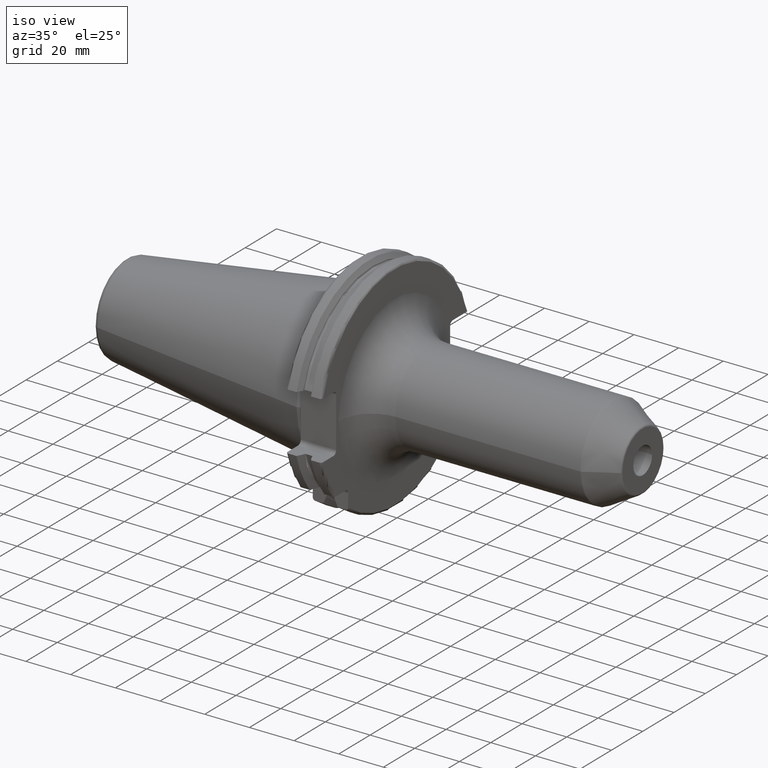
[diagram: clean part render]
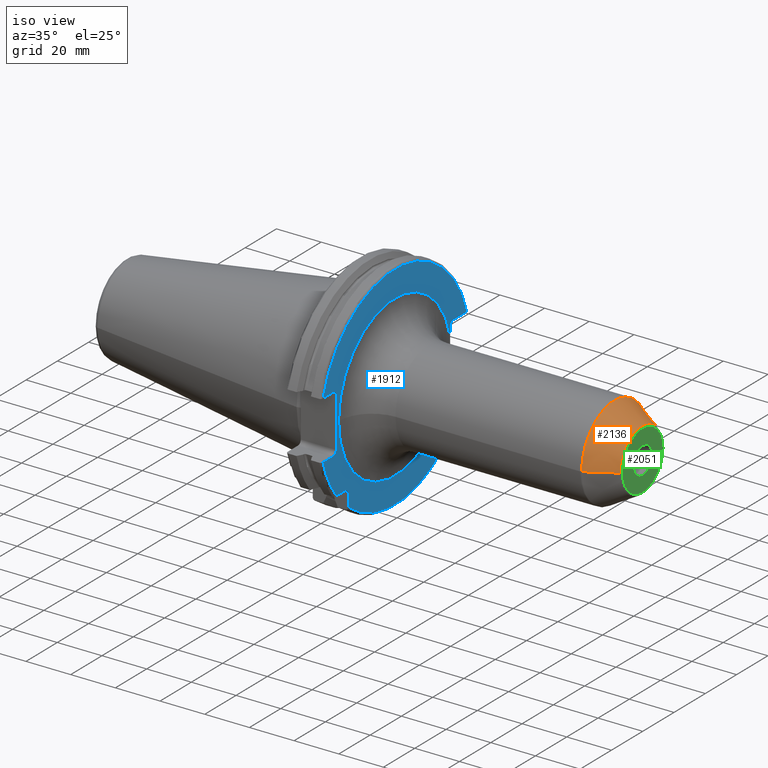
[diagram: same view with three faces highlighted in distinct colors, each labeled with its STEP entity id]
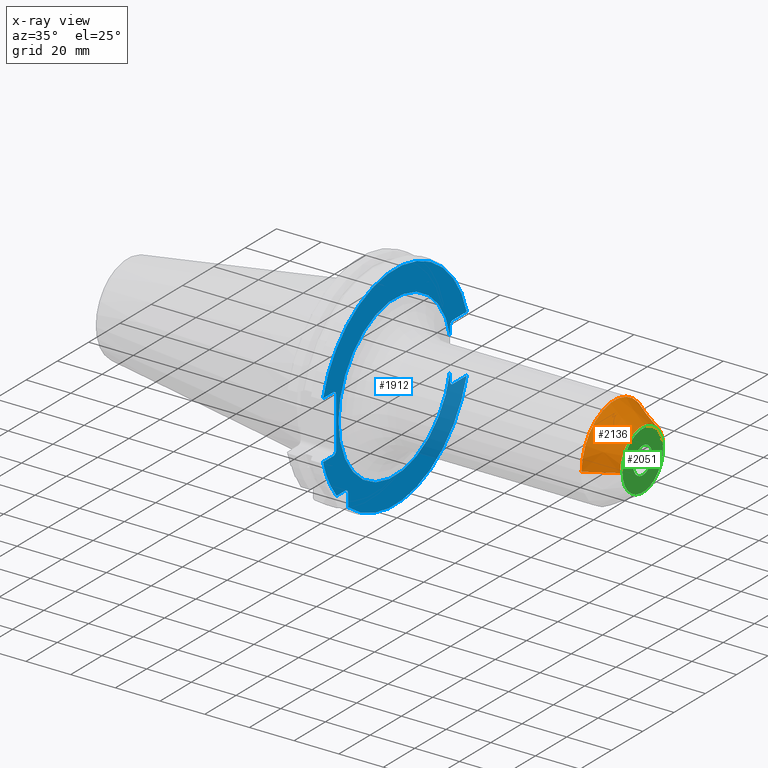
[diagram: x-ray of the same camera — body ghosted, the three highlighted faces saturated]
A machine part, iso view with three faces highlighted in distinct colors.
The next image is the same camera in x-ray (body ghosted, the three faces saturated) — at least one of them is partly hidden behind the body in this view.
Their STEP definitions:

[orange] entity #2136 — the highlighted conical surface has half-angle 30 deg.
#350=DIRECTION('',(-8.660254037844E-1,-5.E-1,1.561626222061E-13));
#351=VECTOR('',#350,1.416580753731E1);
#352=CARTESIAN_POINT('',(1.295E2,-1.378312163513E1,2.107165525775E-12));
#353=LINE('',#352,#351);
#359=DIRECTION('',(-8.660254037844E-1,5.E-1,-1.559170936960E-13));
#360=VECTOR('',#359,1.416580753731E1);
#361=CARTESIAN_POINT('',(1.295E2,1.378312163513E1,-2.110651033828E-12));
#362=LINE('',#361,#360);
#419=CARTESIAN_POINT('',(1.172320508076E2,0.E0,0.E0));
#420=DIRECTION('',(-1.E0,0.E0,0.E0));
#421=DIRECTION('',(0.E0,-1.E0,0.E0));
#422=AXIS2_PLACEMENT_3D('',#419,#420,#421);
#424=CARTESIAN_POINT('',(1.295E2,0.E0,0.E0));
#425=DIRECTION('',(-1.E0,0.E0,0.E0));
#426=DIRECTION('',(0.E0,-1.E0,0.E0));
#427=AXIS2_PLACEMENT_3D('',#424,#425,#426);
#1663=CARTESIAN_POINT('',(1.172320508076E2,2.086602540378E1,0.E0));
#1664=CARTESIAN_POINT('',(1.172320508076E2,-2.086602540378E1,0.E0));
#1665=VERTEX_POINT('',#1663);
#1666=VERTEX_POINT('',#1664);
#1667=CARTESIAN_POINT('',(1.295E2,1.378312163513E1,0.E0));
#1668=CARTESIAN_POINT('',(1.295E2,-1.378312163513E1,0.E0));
#1669=VERTEX_POINT('',#1667);
#1670=VERTEX_POINT('',#1668);
#2124=CARTESIAN_POINT('',(1.233660254038E2,0.E0,0.E0));
#2125=DIRECTION('',(-1.E0,0.E0,0.E0));
#2126=DIRECTION('',(0.E0,1.E0,0.E0));
#2127=AXIS2_PLACEMENT_3D('',#2124,#2125,#2126);
#2128=CONICAL_SURFACE('',#2127,1.732457351946E1,3.E1);
#2129=ORIENTED_EDGE('',*,*,#2118,.T.);
#2130=ORIENTED_EDGE('',*,*,#2077,.F.);
#2132=ORIENTED_EDGE('',*,*,#2131,.F.);
#2133=ORIENTED_EDGE('',*,*,#2074,.T.);
#2134=EDGE_LOOP('',(#2129,#2130,#2132,#2133));
#2135=FACE_OUTER_BOUND('',#2134,.F.);
#2136=ADVANCED_FACE('',(#2135),#2128,.T.);
#423=CIRCLE('',#422,2.086602540378E1);
#428=CIRCLE('',#427,1.378312163513E1);
#2074=EDGE_CURVE('',#1670,#1666,#353,.T.);
#2077=EDGE_CURVE('',#1669,#1665,#362,.T.);
#2118=EDGE_CURVE('',#1666,#1665,#423,.T.);
#2131=EDGE_CURVE('',#1670,#1669,#428,.T.);

[blue] entity #1912 — the highlighted planar face has unit normal (1, 0, 0).
#130=CARTESIAN_POINT('',(1.905E1,0.E0,0.E0));
#131=DIRECTION('',(1.E0,0.E0,0.E0));
#132=DIRECTION('',(0.E0,-1.E0,0.E0));
#133=AXIS2_PLACEMENT_3D('',#130,#131,#132);
#135=DIRECTION('',(0.E0,-2.032129438473E-6,-9.999999999979E-1));
#136=VECTOR('',#135,4.085507980678E0);
#137=CARTESIAN_POINT('',(1.905E1,3.530000830228E1,-7.064492019331E0));
#138=LINE('',#137,#136);
#139=DIRECTION('',(0.E0,-1.E0,0.E0));
#140=VECTOR('',#139,8.911493733886E0);
#141=CARTESIAN_POINT('',(1.905E1,4.596149373389E1,-1.29E1));
#142=LINE('',#141,#140);
#143=DIRECTION('',(0.E0,0.E0,1.E0));
#144=VECTOR('',#143,5.653810627237E0);
#145=CARTESIAN_POINT('',(1.905E1,-2.985E1,-3.725381062724E1));
#146=LINE('',#145,#144);
#147=DIRECTION('',(0.E0,-1.E0,0.E0));
#148=VECTOR('',#147,5.653810627237E0);
#149=CARTESIAN_POINT('',(1.905E1,-3.16E1,-2.985E1));
#150=LINE('',#149,#148);
#151=DIRECTION('',(0.E0,1.E0,0.E0));
#152=VECTOR('',#151,6.711493733886E0);
#153=CARTESIAN_POINT('',(1.905E1,-4.596149373389E1,-1.29E1));
#154=LINE('',#153,#152);
#155=DIRECTION('',(0.E0,0.E0,1.E0));
#156=VECTOR('',#155,2.23E1);
#157=CARTESIAN_POINT('',(1.905E1,-3.75E1,-1.115E1));
#158=LINE('',#157,#156);
#159=DIRECTION('',(0.E0,1.E0,0.E0));
#160=VECTOR('',#159,6.711493733886E0);
#161=CARTESIAN_POINT('',(1.905E1,-4.596149373389E1,1.29E1));
#162=LINE('',#161,#160);
#163=DIRECTION('',(0.E0,-1.E0,0.E0));
#164=VECTOR('',#163,8.911493733886E0);
#165=CARTESIAN_POINT('',(1.905E1,4.596149373389E1,1.29E1));
#166=LINE('',#165,#164);
#167=DIRECTION('',(0.E0,2.233969081153E-6,-9.999999999975E-1));
#168=VECTOR('',#167,4.085480621795E0);
#169=CARTESIAN_POINT('',(1.905E1,3.53E1,1.115E1));
#170=LINE('',#169,#168);
#171=CARTESIAN_POINT('',(1.905E1,0.E0,0.E0));
#172=DIRECTION('',(1.E0,0.E0,0.E0));
#173=DIRECTION('',(0.E0,9.805577363582E-1,1.962307969408E-1));
#174=AXIS2_PLACEMENT_3D('',#171,#172,#173);
#434=CARTESIAN_POINT('',(1.905E1,3.705E1,-1.115E1));
#435=DIRECTION('',(-1.E0,0.E0,0.E0));
#436=DIRECTION('',(0.E0,0.E0,-1.E0));
#437=AXIS2_PLACEMENT_3D('',#434,#435,#436);
#503=CARTESIAN_POINT('',(1.905E1,-3.925E1,1.115E1));
#504=DIRECTION('',(-1.E0,0.E0,0.E0));
#505=DIRECTION('',(0.E0,0.E0,1.E0));
#506=AXIS2_PLACEMENT_3D('',#503,#504,#505);
#521=CARTESIAN_POINT('',(1.905E1,-3.925E1,-1.115E1));
#522=DIRECTION('',(-1.E0,0.E0,0.E0));
#523=DIRECTION('',(0.E0,1.E0,0.E0));
#524=AXIS2_PLACEMENT_3D('',#521,#522,#523);
#544=CARTESIAN_POINT('',(1.905E1,4.596149373389E1,-1.29E1));
#556=CARTESIAN_POINT('',(1.905E1,0.E0,0.E0));
#557=DIRECTION('',(-1.E0,0.E0,0.E0));
#558=DIRECTION('',(0.E0,9.627964123359E-1,-2.702278083268E-1));
#559=AXIS2_PLACEMENT_3D('',#556,#557,#558);
#561=CARTESIAN_POINT('',(1.905E1,-4.596149373389E1,-1.29E1));
#572=CARTESIAN_POINT('',(1.905E1,0.E0,0.E0));
#573=DIRECTION('',(-1.E0,0.E0,0.E0));
#574=DIRECTION('',(0.E0,-7.803888060170E-1,-6.252945797329E-1));
#575=AXIS2_PLACEMENT_3D('',#572,#573,#574);
#586=CARTESIAN_POINT('',(1.905E1,-3.725381062724E1,-2.985E1));
#707=CARTESIAN_POINT('',(1.905E1,-3.16E1,-3.16E1));
#708=DIRECTION('',(-1.E0,0.E0,0.E0));
#709=DIRECTION('',(0.E0,0.E0,1.E0));
#710=AXIS2_PLACEMENT_3D('',#707,#708,#709);
#792=CARTESIAN_POINT('',(1.905E1,3.705E1,1.115E1));
#793=DIRECTION('',(-1.E0,0.E0,0.E0));
#794=DIRECTION('',(0.E0,-1.E0,0.E0));
#795=AXIS2_PLACEMENT_3D('',#792,#793,#794);
#802=CARTESIAN_POINT('',(1.905E1,4.596149373389E1,1.29E1));
#813=CARTESIAN_POINT('',(1.905E1,0.E0,0.E0));
#814=DIRECTION('',(1.E0,0.E0,0.E0));
#815=DIRECTION('',(0.E0,9.627964123359E-1,2.702278083268E-1));
#816=AXIS2_PLACEMENT_3D('',#813,#814,#815);
#827=CARTESIAN_POINT('',(1.905E1,-4.596149373389E1,1.29E1));
#1561=VERTEX_POINT('',#802);
#1562=VERTEX_POINT('',#827);
#1565=VERTEX_POINT('',#544);
#1566=VERTEX_POINT('',#561);
#1585=CARTESIAN_POINT('',(1.905E1,-2.985E1,-3.725381062724E1));
#1586=VERTEX_POINT('',#1585);
#1593=CARTESIAN_POINT('',(1.905E1,-3.75E1,-1.115E1));
#1595=VERTEX_POINT('',#1593);
#1597=CARTESIAN_POINT('',(1.905E1,-3.925E1,-1.29E1));
#1599=VERTEX_POINT('',#1597);
#1601=CARTESIAN_POINT('',(1.905E1,-3.925E1,1.29E1));
#1603=VERTEX_POINT('',#1601);
#1605=CARTESIAN_POINT('',(1.905E1,-3.75E1,1.115E1));
#1607=VERTEX_POINT('',#1605);
#1609=CARTESIAN_POINT('',(1.905E1,3.53E1,1.115E1));
#1611=VERTEX_POINT('',#1609);
#1613=CARTESIAN_POINT('',(1.905E1,3.705E1,1.29E1));
#1615=VERTEX_POINT('',#1613);
#1617=CARTESIAN_POINT('',(1.905E1,3.705E1,-1.29E1));
#1619=VERTEX_POINT('',#1617);
#1621=CARTESIAN_POINT('',(1.905E1,3.53E1,-1.115E1));
#1623=VERTEX_POINT('',#1621);
#1625=CARTESIAN_POINT('',(1.905E1,-3.16E1,-2.985E1));
#1626=CARTESIAN_POINT('',(1.905E1,-2.985E1,-3.16E1));
#1627=VERTEX_POINT('',#1625);
#1628=VERTEX_POINT('',#1626);
#1649=CARTESIAN_POINT('',(1.905E1,-3.6E1,0.E0));
#1650=CARTESIAN_POINT('',(1.905E1,3.530009667998E1,-7.064217889032E0));
#1651=VERTEX_POINT('',#1649);
#1652=VERTEX_POINT('',#1650);
#1657=CARTESIAN_POINT('',(1.905E1,3.530007850890E1,7.064308689871E0));
#1658=VERTEX_POINT('',#1657);
#1693=VERTEX_POINT('',#586);
#1869=CARTESIAN_POINT('',(1.905E1,0.E0,0.E0));
#1870=DIRECTION('',(1.E0,0.E0,0.E0));
#1871=DIRECTION('',(0.E0,-1.E0,0.E0));
#1872=AXIS2_PLACEMENT_3D('',#1869,#1870,#1871);
#1873=PLANE('',#1872);
#1875=ORIENTED_EDGE('',*,*,#1874,.T.);
#1876=ORIENTED_EDGE('',*,*,#1847,.T.);
#1878=ORIENTED_EDGE('',*,*,#1877,.F.);
#1880=ORIENTED_EDGE('',*,*,#1879,.F.);
#1882=ORIENTED_EDGE('',*,*,#1881,.T.);
#1884=ORIENTED_EDGE('',*,*,#1883,.T.);
#1886=ORIENTED_EDGE('',*,*,#1885,.F.);
#1888=ORIENTED_EDGE('',*,*,#1887,.T.);
#1890=ORIENTED_EDGE('',*,*,#1889,.T.);
#1892=ORIENTED_EDGE('',*,*,#1891,.T.);
#1894=ORIENTED_EDGE('',*,*,#1893,.F.);
#1896=ORIENTED_EDGE('',*,*,#1895,.T.);
#1898=ORIENTED_EDGE('',*,*,#1897,.F.);
#1900=ORIENTED_EDGE('',*,*,#1899,.F.);
#1902=ORIENTED_EDGE('',*,*,#1901,.F.);
#1904=ORIENTED_EDGE('',*,*,#1903,.T.);
#1906=ORIENTED_EDGE('',*,*,#1905,.F.);
#1907=ORIENTED_EDGE('',*,*,#1853,.T.);
#1909=ORIENTED_EDGE('',*,*,#1908,.T.);
#1910=EDGE_LOOP('',(#1875,#1876,#1878,#1880,#1882,#1884,#1886,#1888,#1890,#1892,
#1894,#1896,#1898,#1900,#1902,#1904,#1906,#1907,#1909));
#1911=FACE_OUTER_BOUND('',#1910,.F.);
#1912=ADVANCED_FACE('',(#1911),#1873,.T.);
#134=CIRCLE('',#133,3.6E1);
#175=CIRCLE('',#174,3.6E1);
#438=CIRCLE('',#437,1.75E0);
#507=CIRCLE('',#506,1.75E0);
#525=CIRCLE('',#524,1.75E0);
#560=CIRCLE('',#559,4.77375E1);
#576=CIRCLE('',#575,4.77375E1);
#711=CIRCLE('',#710,1.75E0);
#796=CIRCLE('',#795,1.75E0);
#817=CIRCLE('',#816,4.77375E1);
#1847=EDGE_CURVE('',#1652,#1623,#138,.T.);
#1853=EDGE_CURVE('',#1611,#1658,#170,.T.);
#1874=EDGE_CURVE('',#1651,#1652,#134,.T.);
#1877=EDGE_CURVE('',#1619,#1623,#438,.T.);
#1879=EDGE_CURVE('',#1565,#1619,#142,.T.);
#1881=EDGE_CURVE('',#1565,#1586,#560,.T.);
#1883=EDGE_CURVE('',#1586,#1628,#146,.T.);
#1885=EDGE_CURVE('',#1627,#1628,#711,.T.);
#1887=EDGE_CURVE('',#1627,#1693,#150,.T.);
#1889=EDGE_CURVE('',#1693,#1566,#576,.T.);
#1891=EDGE_CURVE('',#1566,#1599,#154,.T.);
#1893=EDGE_CURVE('',#1595,#1599,#525,.T.);
#1895=EDGE_CURVE('',#1595,#1607,#158,.T.);
#1897=EDGE_CURVE('',#1603,#1607,#507,.T.);
#1899=EDGE_CURVE('',#1562,#1603,#162,.T.);
#1901=EDGE_CURVE('',#1561,#1562,#817,.T.);
#1903=EDGE_CURVE('',#1561,#1615,#166,.T.);
#1905=EDGE_CURVE('',#1611,#1615,#796,.T.);
#1908=EDGE_CURVE('',#1658,#1651,#175,.T.);

[green] entity #2051 — the highlighted planar face has unit normal (1, 0, 0).
#320=CARTESIAN_POINT('',(1.3E2,0.E0,0.E0));
#321=DIRECTION('',(1.E0,0.E0,0.E0));
#322=DIRECTION('',(0.E0,1.E0,0.E0));
#323=AXIS2_PLACEMENT_3D('',#320,#321,#322);
#325=CARTESIAN_POINT('',(1.3E2,0.E0,0.E0));
#326=DIRECTION('',(1.E0,0.E0,0.E0));
#327=DIRECTION('',(0.E0,-1.E0,0.E0));
#328=AXIS2_PLACEMENT_3D('',#325,#326,#327);
#330=CARTESIAN_POINT('',(1.3E2,0.E0,0.E0));
#331=DIRECTION('',(-1.E0,0.E0,0.E0));
#332=DIRECTION('',(0.E0,1.E0,0.E0));
#333=AXIS2_PLACEMENT_3D('',#330,#331,#332);
#335=CARTESIAN_POINT('',(1.3E2,0.E0,0.E0));
#336=DIRECTION('',(-1.E0,0.E0,0.E0));
#337=DIRECTION('',(0.E0,-1.E0,0.E0));
#338=AXIS2_PLACEMENT_3D('',#335,#336,#337);
#1637=CARTESIAN_POINT('',(1.3E2,-6.E0,0.E0));
#1638=VERTEX_POINT('',#1637);
#1647=CARTESIAN_POINT('',(1.3E2,6.E0,0.E0));
#1648=VERTEX_POINT('',#1647);
#1671=CARTESIAN_POINT('',(1.3E2,1.291709623135E1,-1.144169546657E-14));
#1672=CARTESIAN_POINT('',(1.3E2,-1.291709623135E1,-1.882190788351E-14));
#1673=VERTEX_POINT('',#1671);
#1674=VERTEX_POINT('',#1672);
#2036=CARTESIAN_POINT('',(1.3E2,0.E0,0.E0));
#2037=DIRECTION('',(1.E0,0.E0,0.E0));
#2038=DIRECTION('',(0.E0,-1.E0,0.E0));
#2039=AXIS2_PLACEMENT_3D('',#2036,#2037,#2038);
#2040=PLANE('',#2039);
#2042=ORIENTED_EDGE('',*,*,#2041,.T.);
#2044=ORIENTED_EDGE('',*,*,#2043,.T.);
#2045=EDGE_LOOP('',(#2042,#2044));
#2046=FACE_OUTER_BOUND('',#2045,.F.);
#2047=ORIENTED_EDGE('',*,*,#2020,.T.);
#2048=ORIENTED_EDGE('',*,*,#1999,.T.);
#2049=EDGE_LOOP('',(#2047,#2048));
#2050=FACE_BOUND('',#2049,.F.);
#2051=ADVANCED_FACE('',(#2046,#2050),#2040,.T.);
#324=CIRCLE('',#323,6.E0);
#329=CIRCLE('',#328,6.E0);
#334=CIRCLE('',#333,1.291709623135E1);
#339=CIRCLE('',#338,1.291709623135E1);
#1999=EDGE_CURVE('',#1638,#1648,#329,.T.);
#2020=EDGE_CURVE('',#1648,#1638,#324,.T.);
#2041=EDGE_CURVE('',#1673,#1674,#334,.T.);
#2043=EDGE_CURVE('',#1674,#1673,#339,.T.);